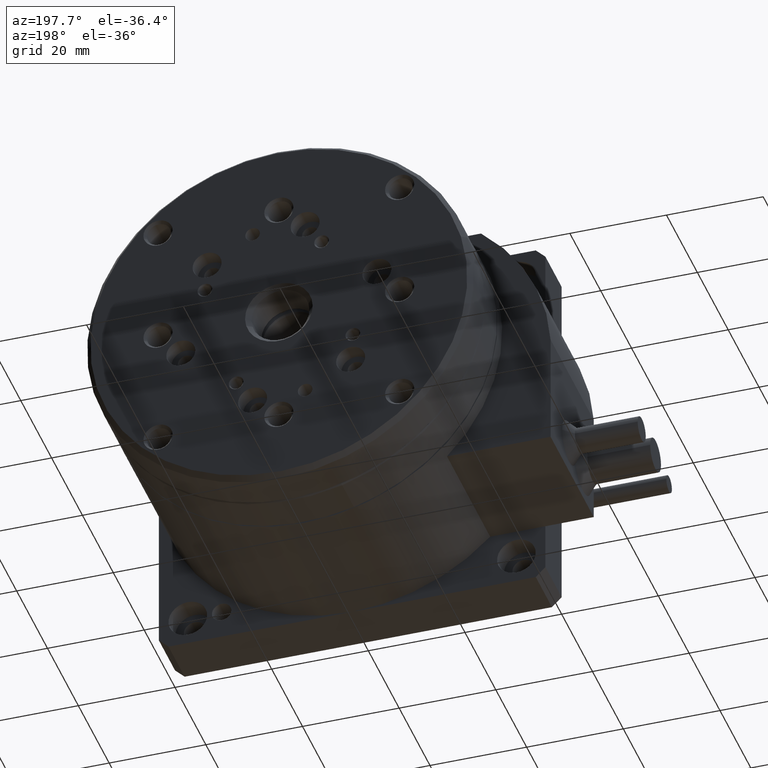
[diagram: clean part render]
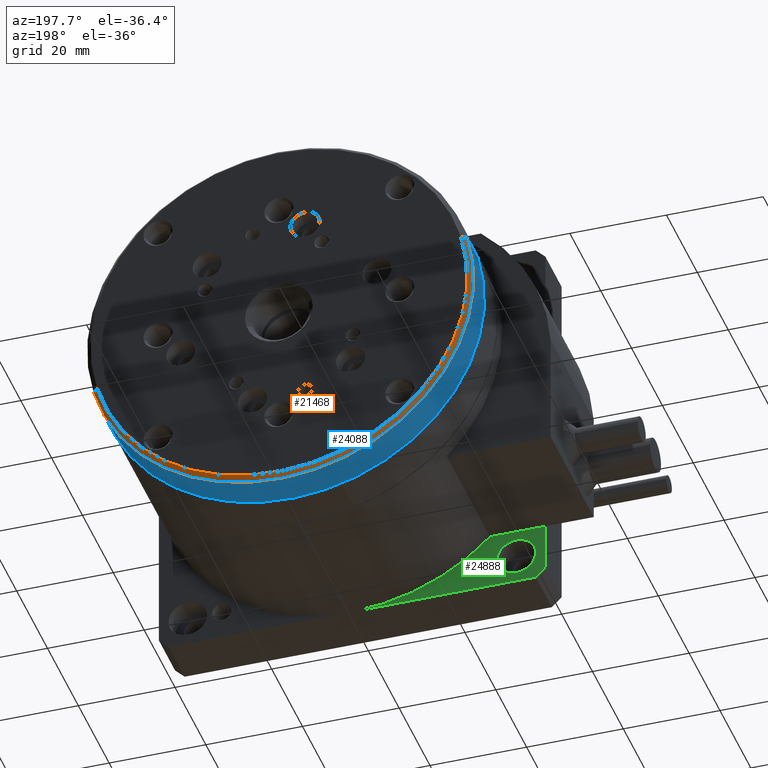
[diagram: same view with three faces highlighted in distinct colors, each labeled with its STEP entity id]
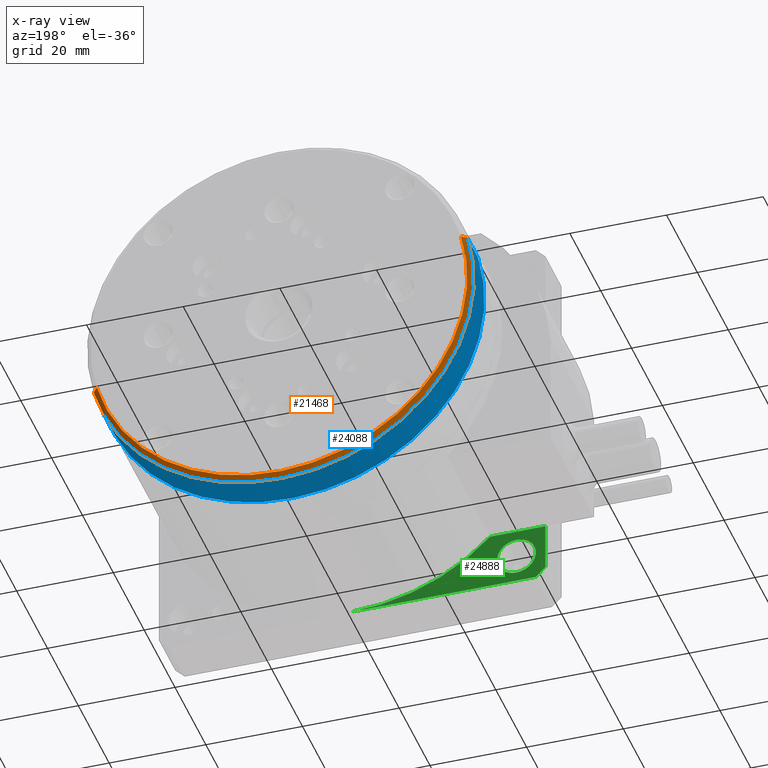
[diagram: x-ray of the same camera — body ghosted, the three highlighted faces saturated]
A machine part, auxiliary view with three faces highlighted in distinct colors.
The next image is the same camera in x-ray (body ghosted, the three faces saturated) — at least one of them is partly hidden behind the body in this view.
Their STEP definitions:

[orange] entity #21468 — the highlighted conical surface has half-angle 45 deg.
#525 = ORIENTED_EDGE ( 'NONE', *, *, #17881, .F. ) ;
#1018 = DIRECTION ( 'NONE',  ( -0.9659258262890670900, 0.0000000000000000000, 0.2588190451025248500 ) ) ;
#1104 = CARTESIAN_POINT ( 'NONE',  ( 40.00000000000001400, 58.00000000000000000, 39.99999999999998600 ) ) ;
#1190 = CONICAL_SURFACE ( 'NONE', #5821, 39.00000000000002800, 0.7853981633974415100 ) ;
#1297 = AXIS2_PLACEMENT_3D ( 'NONE', #11387, #25396, #1586 ) ;
#1586 = DIRECTION ( 'NONE',  ( 0.9659258262890673100, 0.0000000000000000000, -0.2588190451025249600 ) ) ;
#4462 = VERTEX_POINT ( 'NONE', #8730 ) ;
#5821 = AXIS2_PLACEMENT_3D ( 'NONE', #1104, #12813, #1018 ) ;
#6629 = VERTEX_POINT ( 'NONE', #12078 ) ;
#7083 = CARTESIAN_POINT ( 'NONE',  ( 2.328892774726372600, 58.00000000000000000, 50.09394275899846600 ) ) ;
#8730 = CARTESIAN_POINT ( 'NONE',  ( 1.362966948437328800, 57.00000000000000700, 50.35276180410098600 ) ) ;
#8786 = EDGE_LOOP ( 'NONE', ( #12775, #18918, #525, #9345 ) ) ;
#9302 = CIRCLE ( 'NONE', #1297, 39.00000000000001400 ) ;
#9345 = ORIENTED_EDGE ( 'NONE', *, *, #11382, .F. ) ;
#9685 = CARTESIAN_POINT ( 'NONE',  ( 40.00000000000001400, 57.00000000000000700, 39.99999999999998600 ) ) ;
#10411 = EDGE_CURVE ( 'NONE', #15263, #16698, #23363, .T. ) ;
#11344 = EDGE_CURVE ( 'NONE', #15263, #6629, #9302, .T. ) ;
#11382 = EDGE_CURVE ( 'NONE', #6629, #4462, #11435, .T. ) ;
#11387 = CARTESIAN_POINT ( 'NONE',  ( 40.00000000000001400, 58.00000000000000000, 39.99999999999998600 ) ) ;
#11435 = LINE ( 'NONE', #7083, #19862 ) ;
#11644 = DIRECTION ( 'NONE',  ( 0.9659258262890670900, 0.0000000000000000000, -0.2588190451025248500 ) ) ;
#12078 = CARTESIAN_POINT ( 'NONE',  ( 2.328892774726372600, 58.00000000000000000, 50.09394275899846600 ) ) ;
#12119 = VECTOR ( 'NONE', #18782, 1000.000000000000000 ) ;
#12564 = CARTESIAN_POINT ( 'NONE',  ( 77.67110722527364400, 58.00000000000000000, 29.90605724100150900 ) ) ;
#12775 = ORIENTED_EDGE ( 'NONE', *, *, #11344, .F. ) ;
#12813 = DIRECTION ( 'NONE',  ( 1.281445106517806600E-030, -1.000000000000000000, 1.145920134985142900E-030 ) ) ;
#13215 = AXIS2_PLACEMENT_3D ( 'NONE', #9685, #23607, #11644 ) ;
#14613 = CIRCLE ( 'NONE', #13215, 40.00000000000001400 ) ;
#15263 = VERTEX_POINT ( 'NONE', #12564 ) ;
#16698 = VERTEX_POINT ( 'NONE', #24786 ) ;
#17881 = EDGE_CURVE ( 'NONE', #4462, #16698, #14613, .T. ) ;
#18782 = DIRECTION ( 'NONE',  ( 0.6830127018922138600, -0.7071067811865523500, -0.1830127018922210200 ) ) ;
#18918 = ORIENTED_EDGE ( 'NONE', *, *, #10411, .T. ) ;
#19227 = DIRECTION ( 'NONE',  ( -0.6830127018922138600, -0.7071067811865523500, 0.1830127018922209600 ) ) ;
#19862 = VECTOR ( 'NONE', #19227, 1000.000000000000100 ) ;
#21468 = ADVANCED_FACE ( 'NONE', ( #24115 ), #1190, .T. ) ;
#22607 = CARTESIAN_POINT ( 'NONE',  ( 77.67110722527364400, 58.00000000000000000, 29.90605724100150900 ) ) ;
#23363 = LINE ( 'NONE', #22607, #12119 ) ;
#23607 = DIRECTION ( 'NONE',  ( 1.281445106517806600E-030, -1.000000000000000000, 1.145920134985142900E-030 ) ) ;
#24115 = FACE_OUTER_BOUND ( 'NONE', #8786, .T. ) ;
#24786 = CARTESIAN_POINT ( 'NONE',  ( 78.63703305156269600, 57.00000000000000700, 29.64723819589898900 ) ) ;
#25396 = DIRECTION ( 'NONE',  ( -1.281445106517806600E-030, 1.000000000000000000, -1.145920134985142900E-030 ) ) ;

[blue] entity #24088 — the highlighted cylindrical surface (partial cylindrical patch) has radius 40 mm, axis along (0, -1, 0).
#6 = LINE ( 'NONE', #6837, #6150 ) ;
#342 = VECTOR ( 'NONE', #3048, 1000.000000000000000 ) ;
#1309 = AXIS2_PLACEMENT_3D ( 'NONE', #23719, #19961, #11769 ) ;
#3048 = DIRECTION ( 'NONE',  ( 1.281445106517806600E-030, -1.000000000000000000, 1.145920134985142900E-030 ) ) ;
#4462 = VERTEX_POINT ( 'NONE', #8730 ) ;
#4949 = CARTESIAN_POINT ( 'NONE',  ( 1.362966948437321900, 58.00000000000000000, 50.35276180410098600 ) ) ;
#5184 = VERTEX_POINT ( 'NONE', #17556 ) ;
#6150 = VECTOR ( 'NONE', #12096, 1000.000000000000000 ) ;
#6694 = EDGE_CURVE ( 'NONE', #4462, #5184, #23894, .T. ) ;
#6837 = CARTESIAN_POINT ( 'NONE',  ( 78.63703305156271000, 58.00000000000000000, 29.64723819589898900 ) ) ;
#8072 = EDGE_CURVE ( 'NONE', #16698, #21009, #6, .T. ) ;
#8730 = CARTESIAN_POINT ( 'NONE',  ( 1.362966948437328800, 57.00000000000000700, 50.35276180410098600 ) ) ;
#9185 = CARTESIAN_POINT ( 'NONE',  ( 78.63703305156269600, 50.00000000000000000, 29.64723819589898900 ) ) ;
#9437 = DIRECTION ( 'NONE',  ( -1.281445106517806600E-030, 1.000000000000000000, -1.145920134985142900E-030 ) ) ;
#9685 = CARTESIAN_POINT ( 'NONE',  ( 40.00000000000001400, 57.00000000000000700, 39.99999999999998600 ) ) ;
#9787 = CARTESIAN_POINT ( 'NONE',  ( 40.00000000000001400, 50.00000000000000000, 39.99999999999998600 ) ) ;
#11644 = DIRECTION ( 'NONE',  ( 0.9659258262890670900, 0.0000000000000000000, -0.2588190451025248500 ) ) ;
#11734 = AXIS2_PLACEMENT_3D ( 'NONE', #9787, #9437, #17779 ) ;
#11769 = DIRECTION ( 'NONE',  ( -0.9659258262890670900, 0.0000000000000000000, 0.2588190451025248500 ) ) ;
#12096 = DIRECTION ( 'NONE',  ( 1.281445106517806600E-030, -1.000000000000000000, 1.145920134985142900E-030 ) ) ;
#13215 = AXIS2_PLACEMENT_3D ( 'NONE', #9685, #23607, #11644 ) ;
#13825 = CIRCLE ( 'NONE', #11734, 40.00000000000001400 ) ;
#14613 = CIRCLE ( 'NONE', #13215, 40.00000000000001400 ) ;
#16698 = VERTEX_POINT ( 'NONE', #24786 ) ;
#17319 = ORIENTED_EDGE ( 'NONE', *, *, #8072, .T. ) ;
#17556 = CARTESIAN_POINT ( 'NONE',  ( 1.362966948437328800, 50.00000000000000000, 50.35276180410098600 ) ) ;
#17722 = FACE_OUTER_BOUND ( 'NONE', #25535, .T. ) ;
#17779 = DIRECTION ( 'NONE',  ( 0.9659258262890670900, 0.0000000000000000000, -0.2588190451025248500 ) ) ;
#17881 = EDGE_CURVE ( 'NONE', #4462, #16698, #14613, .T. ) ;
#18661 = CYLINDRICAL_SURFACE ( 'NONE', #1309, 40.00000000000001400 ) ;
#19097 = ORIENTED_EDGE ( 'NONE', *, *, #6694, .F. ) ;
#19839 = ORIENTED_EDGE ( 'NONE', *, *, #17881, .T. ) ;
#19961 = DIRECTION ( 'NONE',  ( 1.281445106517806600E-030, -1.000000000000000000, 1.145920134985142900E-030 ) ) ;
#21009 = VERTEX_POINT ( 'NONE', #9185 ) ;
#22954 = ORIENTED_EDGE ( 'NONE', *, *, #25661, .T. ) ;
#23607 = DIRECTION ( 'NONE',  ( 1.281445106517806600E-030, -1.000000000000000000, 1.145920134985142900E-030 ) ) ;
#23719 = CARTESIAN_POINT ( 'NONE',  ( 40.00000000000001400, 58.00000000000000000, 39.99999999999998600 ) ) ;
#23894 = LINE ( 'NONE', #4949, #342 ) ;
#24088 = ADVANCED_FACE ( 'NONE', ( #17722 ), #18661, .T. ) ;
#24786 = CARTESIAN_POINT ( 'NONE',  ( 78.63703305156269600, 57.00000000000000700, 29.64723819589898900 ) ) ;
#25535 = EDGE_LOOP ( 'NONE', ( #19839, #17319, #22954, #19097 ) ) ;
#25661 = EDGE_CURVE ( 'NONE', #21009, #5184, #13825, .T. ) ;

[green] entity #24888 — the highlighted planar face has unit normal (0, -1, 0).
#398 = DIRECTION ( 'NONE',  ( 0.0000000000000000000, 0.0000000000000000000, 1.000000000000000000 ) ) ;
#1015 = EDGE_CURVE ( 'NONE', #9436, #24525, #17621, .T. ) ;
#1322 = VERTEX_POINT ( 'NONE', #7692 ) ;
#1547 = FACE_BOUND ( 'NONE', #24973, .T. ) ;
#1560 = ORIENTED_EDGE ( 'NONE', *, *, #20809, .F. ) ;
#1939 = ORIENTED_EDGE ( 'NONE', *, *, #1015, .F. ) ;
#2663 = CIRCLE ( 'NONE', #5783, 3.999999999999996400 ) ;
#2700 = DIRECTION ( 'NONE',  ( -1.000000000000000000, -2.465190328815661900E-032, -3.572850611589495400E-017 ) ) ;
#2728 = DIRECTION ( 'NONE',  ( -2.465190328815661900E-032, 1.000000000000000000, -3.421138828918010400E-048 ) ) ;
#4302 = ORIENTED_EDGE ( 'NONE', *, *, #19724, .F. ) ;
#4480 = DIRECTION ( 'NONE',  ( 1.000000000000000000, 2.465190328815661900E-032, 1.224646799147353200E-016 ) ) ;
#4539 = CARTESIAN_POINT ( 'NONE',  ( 6.000000000000109200, 10.50000000000000000, 5.999999999999894300 ) ) ;
#4954 = DIRECTION ( 'NONE',  ( 2.465190328815661900E-032, -1.000000000000000000, 3.617686740533762700E-048 ) ) ;
#4966 = CIRCLE ( 'NONE', #14780, 40.00000000000000000 ) ;
#5783 = AXIS2_PLACEMENT_3D ( 'NONE', #4539, #22036, #398 ) ;
#6127 = ORIENTED_EDGE ( 'NONE', *, *, #23025, .F. ) ;
#6157 = CARTESIAN_POINT ( 'NONE',  ( 6.000000000000109200, 10.50000000000000000, 9.999999999999891600 ) ) ;
#7294 = CARTESIAN_POINT ( 'NONE',  ( 11.43428628582857900, 10.50000000000000000, 12.00000000000002800 ) ) ;
#7692 = CARTESIAN_POINT ( 'NONE',  ( -6.938893903907228400E-015, 10.50000000000000000, 2.000000000000036400 ) ) ;
#7869 = CARTESIAN_POINT ( 'NONE',  ( -6.938893903907228400E-015, 10.50000000000000000, 12.00000000000001800 ) ) ;
#8598 = ORIENTED_EDGE ( 'NONE', *, *, #18093, .T. ) ;
#8895 = CARTESIAN_POINT ( 'NONE',  ( 39.99999999999999300, 10.50000000000000000, 40.00000000000001400 ) ) ;
#8936 = DIRECTION ( 'NONE',  ( -2.465190328815661900E-032, 1.000000000000000000, -3.421138828918010400E-048 ) ) ;
#8947 = VECTOR ( 'NONE', #4480, 1000.000000000000000 ) ;
#9436 = VERTEX_POINT ( 'NONE', #11990 ) ;
#9724 = CARTESIAN_POINT ( 'NONE',  ( 40.00000000000000000, 10.50000000000000000, 6.938893903907228400E-015 ) ) ;
#10306 = CARTESIAN_POINT ( 'NONE',  ( 39.99999999999999300, 10.50000000000000000, 12.00000000000001800 ) ) ;
#10396 = AXIS2_PLACEMENT_3D ( 'NONE', #8895, #4954, #12528 ) ;
#10914 = ORIENTED_EDGE ( 'NONE', *, *, #15475, .F. ) ;
#11020 = DIRECTION ( 'NONE',  ( 3.572850611589497800E-017, -2.736911063134407700E-048, -1.000000000000000000 ) ) ;
#11775 = ORIENTED_EDGE ( 'NONE', *, *, #20853, .F. ) ;
#11990 = CARTESIAN_POINT ( 'NONE',  ( 6.000000000000110100, 10.50000000000000000, 1.999999999999897600 ) ) ;
#12528 = DIRECTION ( 'NONE',  ( 3.572850611589497800E-017, -2.736911063134407700E-048, -1.000000000000000000 ) ) ;
#12629 = FACE_OUTER_BOUND ( 'NONE', #18086, .T. ) ;
#12867 = AXIS2_PLACEMENT_3D ( 'NONE', #20856, #8936, #16929 ) ;
#14063 = CARTESIAN_POINT ( 'NONE',  ( 2.000000000000022600, 10.50000000000000000, 6.938893903907228400E-015 ) ) ;
#14190 = DIRECTION ( 'NONE',  ( -0.7071067811865474600, -1.743152798421048900E-032, 0.7071067811865474600 ) ) ;
#14241 = LINE ( 'NONE', #22233, #8947 ) ;
#14248 = LINE ( 'NONE', #18451, #24492 ) ;
#14780 = AXIS2_PLACEMENT_3D ( 'NONE', #24396, #2728, #24568 ) ;
#15475 = EDGE_CURVE ( 'NONE', #19633, #1322, #17728, .T. ) ;
#15877 = VECTOR ( 'NONE', #11020, 1000.000000000000000 ) ;
#16929 = DIRECTION ( 'NONE',  ( 0.0000000000000000000, 0.0000000000000000000, 1.000000000000000000 ) ) ;
#17621 = CIRCLE ( 'NONE', #12867, 3.999999999999996400 ) ;
#17728 = LINE ( 'NONE', #18929, #15877 ) ;
#18086 = EDGE_LOOP ( 'NONE', ( #1560, #11775, #8598, #10914, #6127 ) ) ;
#18093 = EDGE_CURVE ( 'NONE', #18586, #1322, #14248, .T. ) ;
#18451 = CARTESIAN_POINT ( 'NONE',  ( -6.938893903907228400E-015, 10.50000000000000000, 2.000000000000036400 ) ) ;
#18586 = VERTEX_POINT ( 'NONE', #14063 ) ;
#18929 = CARTESIAN_POINT ( 'NONE',  ( -6.938893903907228400E-015, 10.50000000000000000, 80.00000000000001400 ) ) ;
#19633 = VERTEX_POINT ( 'NONE', #7869 ) ;
#19724 = EDGE_CURVE ( 'NONE', #24525, #9436, #2663, .T. ) ;
#20432 = VERTEX_POINT ( 'NONE', #7294 ) ;
#20809 = EDGE_CURVE ( 'NONE', #24060, #20432, #4966, .T. ) ;
#20833 = VECTOR ( 'NONE', #2700, 1000.000000000000000 ) ;
#20853 = EDGE_CURVE ( 'NONE', #18586, #24060, #14241, .T. ) ;
#20856 = CARTESIAN_POINT ( 'NONE',  ( 6.000000000000109200, 10.50000000000000000, 5.999999999999894300 ) ) ;
#22036 = DIRECTION ( 'NONE',  ( -2.465190328815661900E-032, 1.000000000000000000, -3.421138828918010400E-048 ) ) ;
#22233 = CARTESIAN_POINT ( 'NONE',  ( 79.99999999999998600, 10.50000000000000000, 1.387778780781445700E-014 ) ) ;
#22628 = PLANE ( 'NONE',  #10396 ) ;
#23025 = EDGE_CURVE ( 'NONE', #20432, #19633, #24229, .T. ) ;
#24060 = VERTEX_POINT ( 'NONE', #9724 ) ;
#24229 = LINE ( 'NONE', #10306, #20833 ) ;
#24396 = CARTESIAN_POINT ( 'NONE',  ( 39.99999999999999300, 10.50000000000000000, 40.00000000000001400 ) ) ;
#24492 = VECTOR ( 'NONE', #14190, 1000.000000000000100 ) ;
#24525 = VERTEX_POINT ( 'NONE', #6157 ) ;
#24568 = DIRECTION ( 'NONE',  ( 0.0000000000000000000, 0.0000000000000000000, -1.000000000000000000 ) ) ;
#24888 = ADVANCED_FACE ( 'NONE', ( #12629, #1547 ), #22628, .F. ) ;
#24973 = EDGE_LOOP ( 'NONE', ( #4302, #1939 ) ) ;